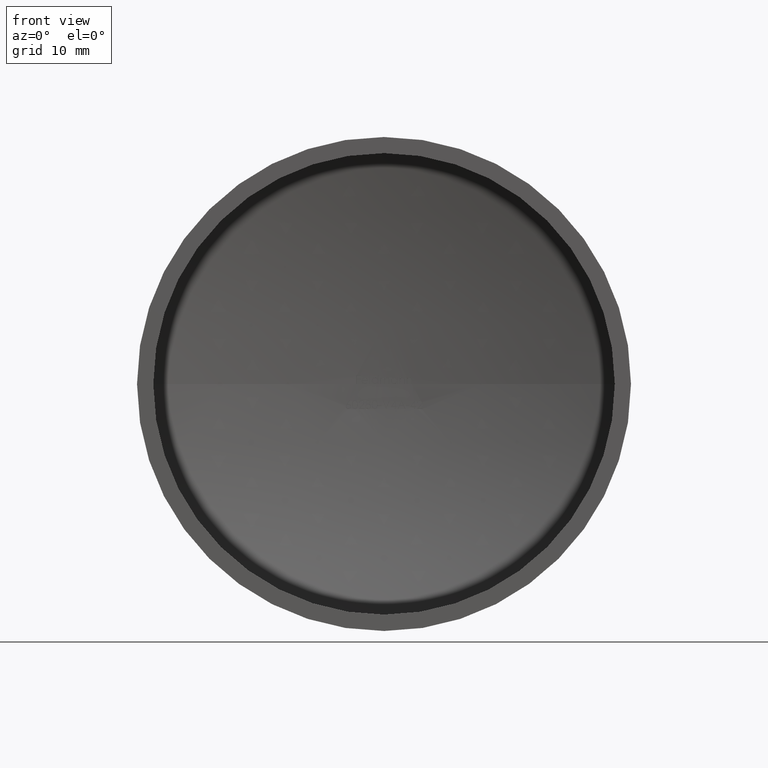
[diagram: clean part render]
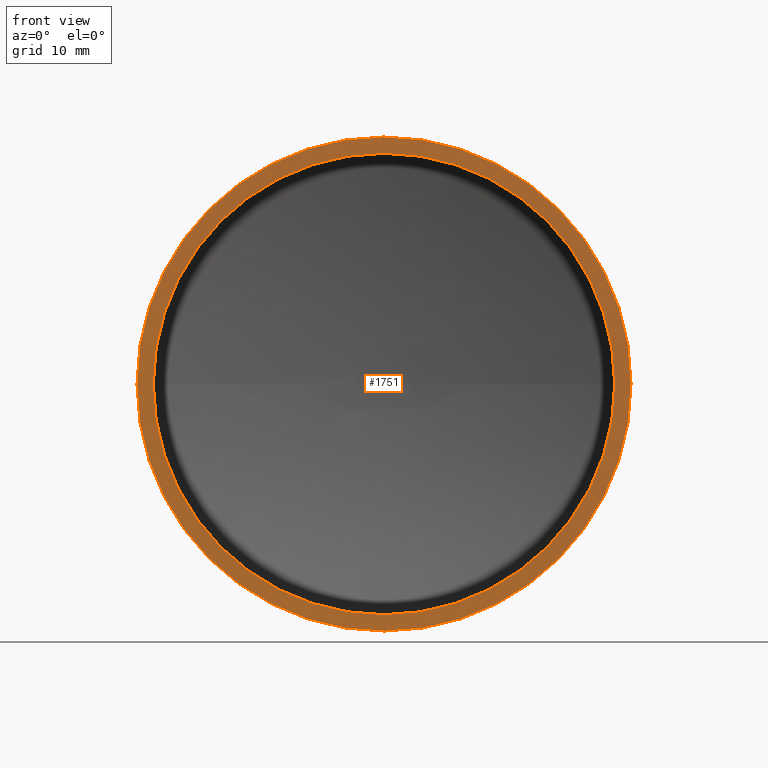
[diagram: same view with one face highlighted and labeled with its STEP entity id]
A machine part, front view. The second image highlights one B-rep face of the part: STEP entity #1751.
In plain terms, the highlighted planar face has unit normal (0, 1, -0).
Its self-contained STEP definition (entity closure, byte-faithful):
#364 = EDGE_CURVE ( 'NONE', #3428, #2292, #446, .T. ) ;
#446 = CIRCLE ( 'NONE', #5972, 21.30000000000000100 ) ;
#1107 = CARTESIAN_POINT ( 'NONE',  ( -22.80000000000000100, 6.982612738733014000E-015, 0.0000000000000000000 ) ) ;
#1146 = DIRECTION ( 'NONE',  ( -1.000000000000000000, 1.540862187183947000E-016, 0.0000000000000000000 ) ) ;
#1751 = ADVANCED_FACE ( 'NONE', ( #11295, #8793 ), #6891, .F. ) ;
#1838 = EDGE_CURVE ( 'NONE', #7822, #2201, #2619, .T. ) ;
#2171 = DIRECTION ( 'NONE',  ( -1.000000000000000000, 1.540862187183947000E-016, 0.0000000000000000000 ) ) ;
#2201 = VERTEX_POINT ( 'NONE', #2594 ) ;
#2292 = VERTEX_POINT ( 'NONE', #3589 ) ;
#2578 = EDGE_LOOP ( 'NONE', ( #6719, #7374 ) ) ;
#2594 = CARTESIAN_POINT ( 'NONE',  ( 22.80000000000000100, -4.371883482578529400E-017, 2.792194702055965200E-015 ) ) ;
#2619 = CIRCLE ( 'NONE', #7406, 22.80000000000000100 ) ;
#3428 = VERTEX_POINT ( 'NONE', #10133 ) ;
#3589 = CARTESIAN_POINT ( 'NONE',  ( -21.30000000000000100, 6.751483410655421100E-015, 0.0000000000000000000 ) ) ;
#3634 = ORIENTED_EDGE ( 'NONE', *, *, #7959, .T. ) ;
#3737 = CIRCLE ( 'NONE', #10262, 21.30000000000000100 ) ;
#4026 = CIRCLE ( 'NONE', #10103, 22.80000000000000100 ) ;
#5972 = AXIS2_PLACEMENT_3D ( 'NONE', #8100, #10895, #2171 ) ;
#6323 = DIRECTION ( 'NONE',  ( -1.000000000000000000, 1.540862187183947000E-016, 0.0000000000000000000 ) ) ;
#6719 = ORIENTED_EDGE ( 'NONE', *, *, #1838, .F. ) ;
#6891 = PLANE ( 'NONE',  #10070 ) ;
#7374 = ORIENTED_EDGE ( 'NONE', *, *, #10187, .F. ) ;
#7406 = AXIS2_PLACEMENT_3D ( 'NONE', #11391, #11309, #6323 ) ;
#7822 = VERTEX_POINT ( 'NONE', #1107 ) ;
#7959 = EDGE_CURVE ( 'NONE', #2292, #3428, #3737, .T. ) ;
#8100 = CARTESIAN_POINT ( 'NONE',  ( 3.851859888774471700E-031, 3.469446951953614200E-015, 0.0000000000000000000 ) ) ;
#8438 = DIRECTION ( 'NONE',  ( 1.540862187183947000E-016, 1.000000000000000000, -0.0000000000000000000 ) ) ;
#8452 = DIRECTION ( 'NONE',  ( 1.540862187183947000E-016, 1.000000000000000000, -0.0000000000000000000 ) ) ;
#8495 = CARTESIAN_POINT ( 'NONE',  ( 3.851859888774471700E-031, 3.469446951953614200E-015, 0.0000000000000000000 ) ) ;
#8793 = FACE_BOUND ( 'NONE', #9849, .T. ) ;
#8872 = CARTESIAN_POINT ( 'NONE',  ( 21.30000000000000100, 1.155646640387961300E-016, 0.0000000000000000000 ) ) ;
#9849 = EDGE_LOOP ( 'NONE', ( #3634, #9922 ) ) ;
#9922 = ORIENTED_EDGE ( 'NONE', *, *, #364, .T. ) ;
#10070 = AXIS2_PLACEMENT_3D ( 'NONE', #8872, #11178, #1146 ) ;
#10103 = AXIS2_PLACEMENT_3D ( 'NONE', #12357, #8438, #11290 ) ;
#10133 = CARTESIAN_POINT ( 'NONE',  ( 21.30000000000000100, 1.874104932518070100E-016, 2.608497682183862100E-015 ) ) ;
#10187 = EDGE_CURVE ( 'NONE', #2201, #7822, #4026, .T. ) ;
#10262 = AXIS2_PLACEMENT_3D ( 'NONE', #8495, #8452, #10360 ) ;
#10360 = DIRECTION ( 'NONE',  ( -1.000000000000000000, 1.540862187183947000E-016, 0.0000000000000000000 ) ) ;
#10895 = DIRECTION ( 'NONE',  ( 1.540862187183947000E-016, 1.000000000000000000, -0.0000000000000000000 ) ) ;
#11178 = DIRECTION ( 'NONE',  ( 1.540862187183947000E-016, 1.000000000000000000, -0.0000000000000000000 ) ) ;
#11290 = DIRECTION ( 'NONE',  ( -1.000000000000000000, 1.540862187183947000E-016, 0.0000000000000000000 ) ) ;
#11295 = FACE_OUTER_BOUND ( 'NONE', #2578, .T. ) ;
#11309 = DIRECTION ( 'NONE',  ( 1.540862187183947000E-016, 1.000000000000000000, -0.0000000000000000000 ) ) ;
#11391 = CARTESIAN_POINT ( 'NONE',  ( 3.851859888774471700E-031, 3.469446951953614200E-015, 0.0000000000000000000 ) ) ;
#12357 = CARTESIAN_POINT ( 'NONE',  ( 3.851859888774471700E-031, 3.469446951953614200E-015, 0.0000000000000000000 ) ) ;